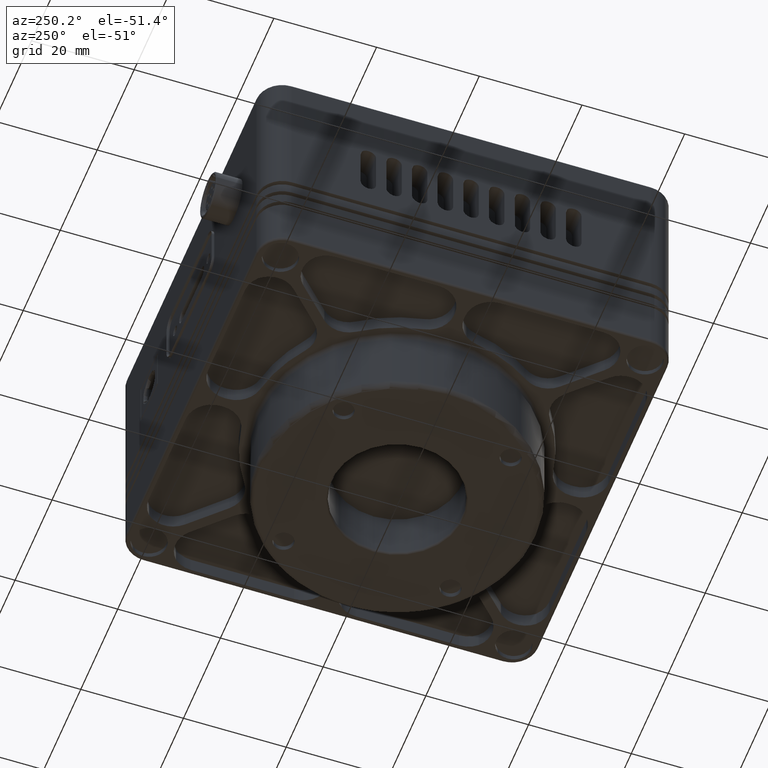
[diagram: clean part render]
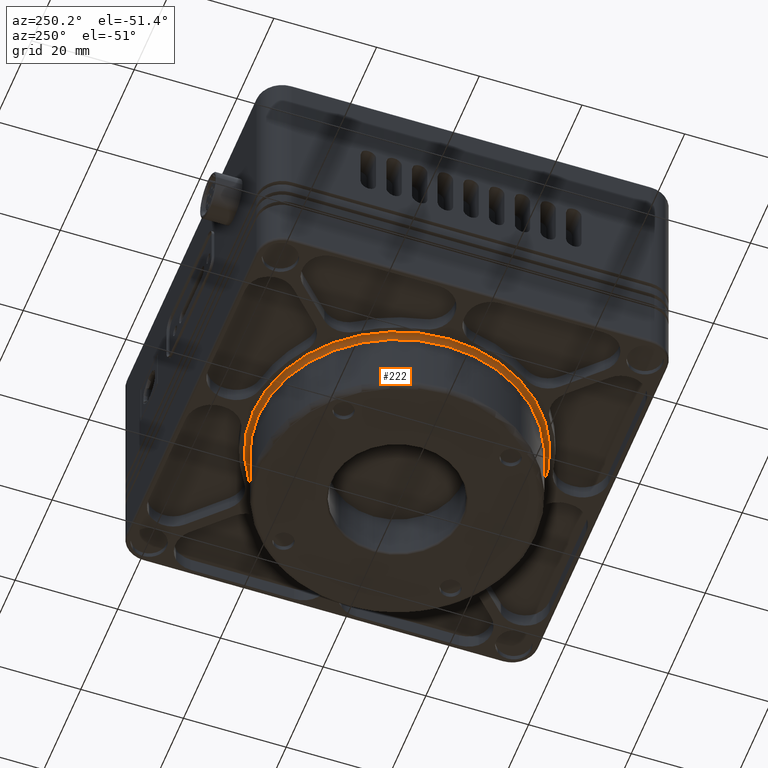
[diagram: same view with one face highlighted and labeled with its STEP entity id]
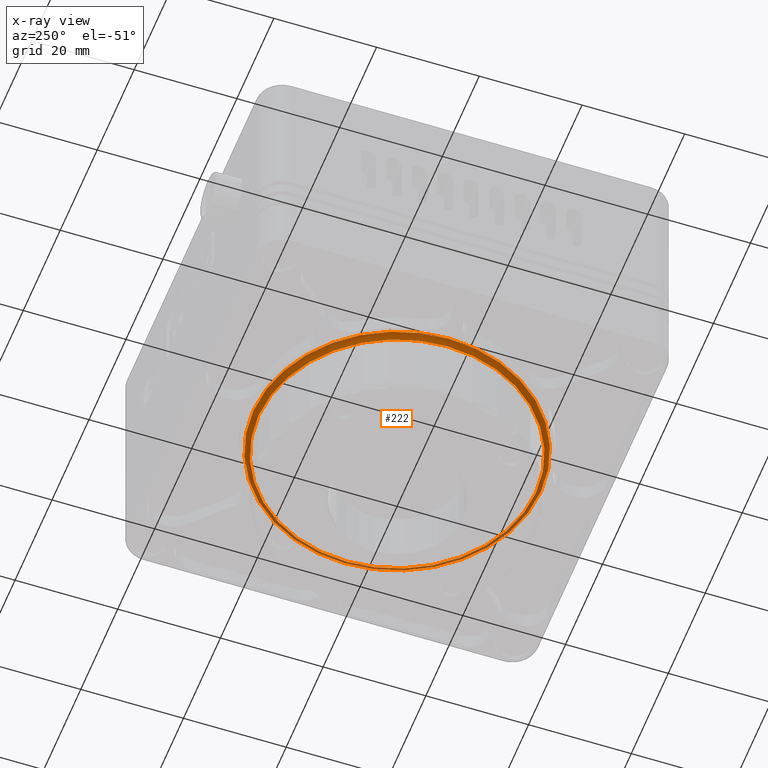
[diagram: x-ray of the same camera — body ghosted, the highlighted face saturated]
A machine part, auxiliary view. The second image highlights one B-rep face of the part: STEP entity #222.
The next image is the same camera in x-ray: the body ghosted, the highlighted face saturated — about 23% of this face is hidden behind the body in this view.
In plain terms, the highlighted toroidal blend (fillet) surface has major radius 28 mm and minor (blend) radius 1 mm.
Its self-contained STEP definition (entity closure, byte-faithful):
#222 = ADVANCED_FACE ( 'NONE', ( #41304, #23696 ), #10900, .F. ) ;
#1137 = DIRECTION ( 'NONE',  ( 0.000000000000000000, 0.000000000000000000, 1.000000000000000000 ) ) ;
#1489 = CARTESIAN_POINT ( 'NONE',  ( 0.000000000000000000, 0.000000000000000000, -16.80000000000000071 ) ) ;
#3317 = CARTESIAN_POINT ( 'NONE',  ( 27.00000000000000000, 0.000000000000000000, -16.80000000000000071 ) ) ;
#5374 = CIRCLE ( 'NONE', #28984, 27.00000000000000000 ) ;
#7373 = DIRECTION ( 'NONE',  ( 1.000000000000000000, 0.000000000000000000, 0.000000000000000000 ) ) ;
#10900 = TOROIDAL_SURFACE ( 'NONE', #22774, 28.00000000000000000, 1.000000000000000000 ) ;
#11651 = EDGE_LOOP ( 'NONE', ( #32162 ) ) ;
#17965 = ORIENTED_EDGE ( 'NONE', *, *, #21333, .F. ) ;
#19203 = EDGE_CURVE ( 'NONE', #38560, #38560, #40287, .T. ) ;
#21333 = EDGE_CURVE ( 'NONE', #41564, #41564, #5374, .T. ) ;
#21785 = CARTESIAN_POINT ( 'NONE',  ( 0.000000000000000000, 0.000000000000000000, -15.80000000000000071 ) ) ;
#22774 = AXIS2_PLACEMENT_3D ( 'NONE', #37830, #45242, #30427 ) ;
#23696 = FACE_OUTER_BOUND ( 'NONE', #11651, .T. ) ;
#26303 = DIRECTION ( 'NONE',  ( -0.000000000000000000, -0.000000000000000000, -1.000000000000000000 ) ) ;
#27665 = CARTESIAN_POINT ( 'NONE',  ( 28.00000000000000000, 0.000000000000000000, -15.80000000000000071 ) ) ;
#28984 = AXIS2_PLACEMENT_3D ( 'NONE', #1489, #26303, #36957 ) ;
#30427 = DIRECTION ( 'NONE',  ( 1.000000000000000000, 0.000000000000000000, 0.000000000000000000 ) ) ;
#32162 = ORIENTED_EDGE ( 'NONE', *, *, #19203, .F. ) ;
#36957 = DIRECTION ( 'NONE',  ( 1.000000000000000000, 0.000000000000000000, 0.000000000000000000 ) ) ;
#37830 = CARTESIAN_POINT ( 'NONE',  ( 0.000000000000000000, 0.000000000000000000, -16.80000000000000071 ) ) ;
#38080 = AXIS2_PLACEMENT_3D ( 'NONE', #21785, #1137, #7373 ) ;
#38560 = VERTEX_POINT ( 'NONE', #27665 ) ;
#40287 = CIRCLE ( 'NONE', #38080, 28.00000000000000000 ) ;
#40415 = EDGE_LOOP ( 'NONE', ( #17965 ) ) ;
#41304 = FACE_OUTER_BOUND ( 'NONE', #40415, .T. ) ;
#41564 = VERTEX_POINT ( 'NONE', #3317 ) ;
#45242 = DIRECTION ( 'NONE',  ( 0.000000000000000000, 0.000000000000000000, 1.000000000000000000 ) ) ;